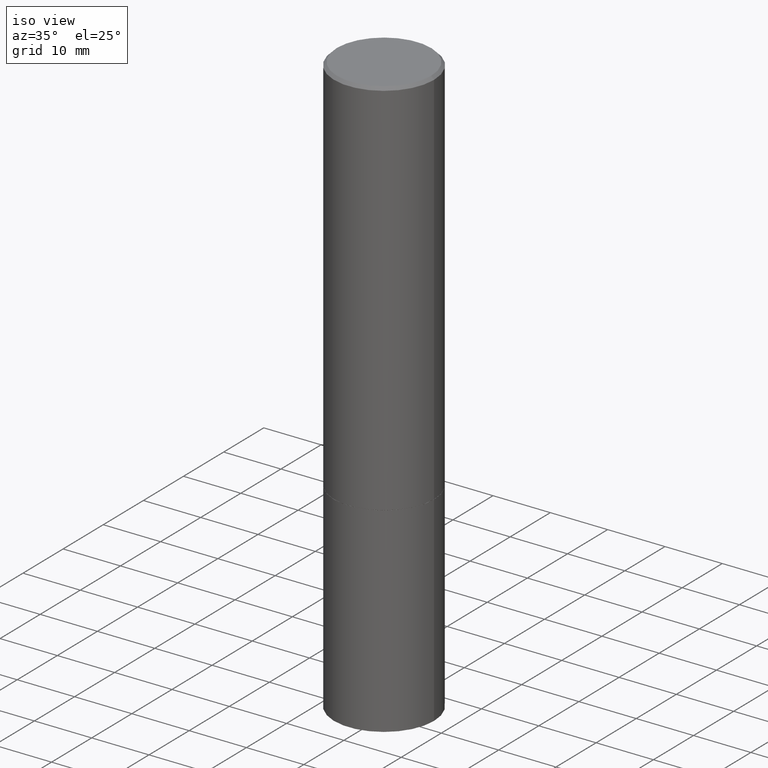
[diagram: clean part render]
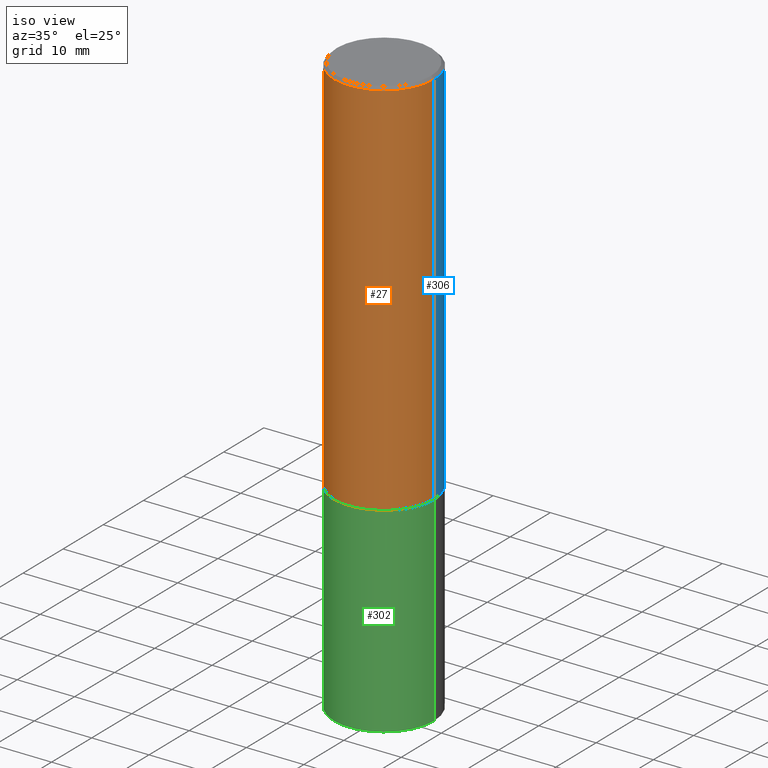
[diagram: same view with three faces highlighted in distinct colors, each labeled with its STEP entity id]
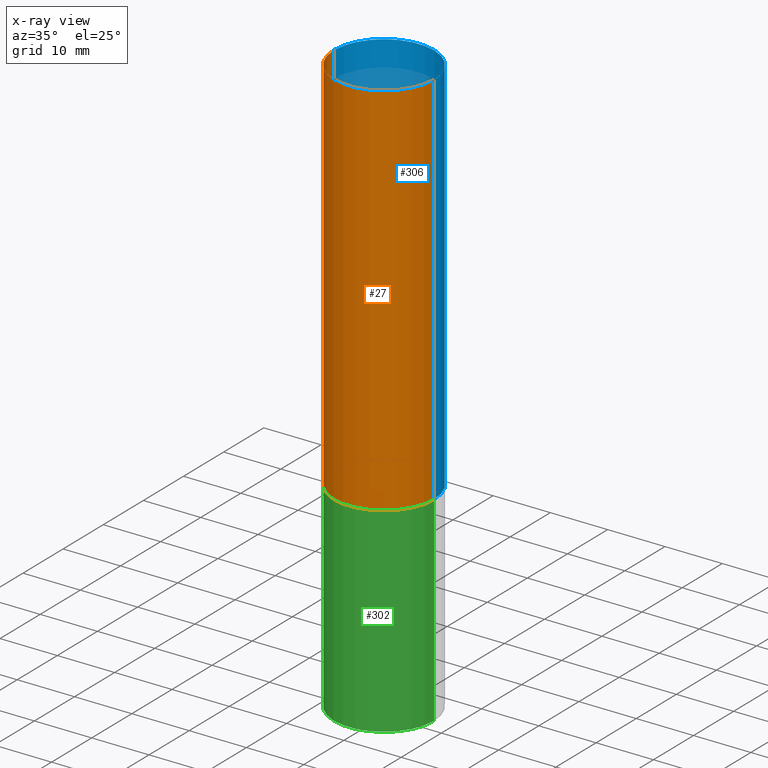
[diagram: x-ray of the same camera — body ghosted, the three highlighted faces saturated]
A machine part, iso view with three faces highlighted in distinct colors.
The next image is the same camera in x-ray (body ghosted, the three faces saturated) — at least one of them is partly hidden behind the body in this view.
Their STEP definitions:

[orange] entity #27 — the highlighted cylindrical surface (partial cylindrical patch) has radius 8.7312 mm, axis along (-0, 0, 1).
#27 = ADVANCED_FACE ( 'NONE', ( #379 ), #106, .T. ) ;
#35 = EDGE_CURVE ( 'NONE', #278, #168, #131, .T. ) ;
#38 = VERTEX_POINT ( 'NONE', #311 ) ;
#74 = DIRECTION ( 'NONE',  ( 1.000000000000000000, -6.982962677686266711E-15, 0.000000000000000000 ) ) ;
#76 = DIRECTION ( 'NONE',  ( 1.000000000000000000, -6.982962677686267499E-15, 4.876176775795935232E-29 ) ) ;
#84 = DIRECTION ( 'NONE',  ( 1.000000000000000000, -6.982962677686263555E-15, 0.000000000000000000 ) ) ;
#99 = VERTEX_POINT ( 'NONE', #259 ) ;
#104 = LINE ( 'NONE', #254, #298 ) ;
#106 = CYLINDRICAL_SURFACE ( 'NONE', #153, 0.3437499999999998335 ) ;
#108 = ORIENTED_EDGE ( 'NONE', *, *, #299, .T. ) ;
#115 = CARTESIAN_POINT ( 'NONE',  ( 0.3437499999999996669, -2.428125813510824906E-15, -0.02000000000000009409 ) ) ;
#130 = DIRECTION ( 'NONE',  ( -2.445468806185136597E-29, 3.491481338843145583E-15, 1.000000000000000000 ) ) ;
#131 = CIRCLE ( 'NONE', #357, 0.3437499999999996669 ) ;
#136 = ORIENTED_EDGE ( 'NONE', *, *, #35, .F. ) ;
#150 = CARTESIAN_POINT ( 'NONE',  ( -0.3437499999999996669, 2.330563793677788517E-15, -0.02000000000000009409 ) ) ;
#153 = AXIS2_PLACEMENT_3D ( 'NONE', #343, #130, #76 ) ;
#154 = EDGE_CURVE ( 'NONE', #99, #168, #231, .T. ) ;
#158 = CIRCLE ( 'NONE', #177, 0.3437500000000000000 ) ;
#168 = VERTEX_POINT ( 'NONE', #115 ) ;
#175 = EDGE_CURVE ( 'NONE', #38, #278, #104, .T. ) ;
#177 = AXIS2_PLACEMENT_3D ( 'NONE', #358, #206, #84 ) ;
#206 = DIRECTION ( 'NONE',  ( -2.445468806185136597E-29, 3.491481338843145583E-15, 1.000000000000000000 ) ) ;
#213 = VECTOR ( 'NONE', #371, 39.37007874015748143 ) ;
#226 = EDGE_LOOP ( 'NONE', ( #310, #108, #339, #136 ) ) ;
#231 = LINE ( 'NONE', #351, #213 ) ;
#254 = CARTESIAN_POINT ( 'NONE',  ( -0.3437499999999998335, 2.442490654175343206E-15, -1.690883937275123074E-29 ) ) ;
#259 = CARTESIAN_POINT ( 'NONE',  ( 0.3437500000000000000, -1.156204045357906700E-14, -2.624000000000000110 ) ) ;
#278 = VERTEX_POINT ( 'NONE', #150 ) ;
#288 = CARTESIAN_POINT ( 'NONE',  ( 4.890937612370296805E-31, -6.982962677686323656E-17, -0.02000000000000009409 ) ) ;
#298 = VECTOR ( 'NONE', #320, 39.37007874015748143 ) ;
#299 = EDGE_CURVE ( 'NONE', #38, #99, #158, .T. ) ;
#309 = DIRECTION ( 'NONE',  ( -2.445468806185136597E-29, 3.491481338843145583E-15, 1.000000000000000000 ) ) ;
#310 = ORIENTED_EDGE ( 'NONE', *, *, #175, .F. ) ;
#311 = CARTESIAN_POINT ( 'NONE',  ( -0.3437500000000000000, -2.173247675775292485E-15, -2.624000000000000110 ) ) ;
#320 = DIRECTION ( 'NONE',  ( -2.445468806185136877E-29, 3.491481338843145188E-15, 1.000000000000000000 ) ) ;
#339 = ORIENTED_EDGE ( 'NONE', *, *, #154, .T. ) ;
#343 = CARTESIAN_POINT ( 'NONE',  ( 0.000000000000000000, 0.000000000000000000, 0.000000000000000000 ) ) ;
#351 = CARTESIAN_POINT ( 'NONE',  ( 0.3437499999999998335, -2.400393420454653393E-15, 1.676185766679852018E-29 ) ) ;
#357 = AXIS2_PLACEMENT_3D ( 'NONE', #288, #309, #74 ) ;
#358 = CARTESIAN_POINT ( 'NONE',  ( 6.416910147429799085E-29, -9.161647033124413605E-15, -2.624000000000000110 ) ) ;
#371 = DIRECTION ( 'NONE',  ( -2.445468806185136877E-29, 3.491481338843145188E-15, 1.000000000000000000 ) ) ;
#379 = FACE_OUTER_BOUND ( 'NONE', #226, .T. ) ;

[blue] entity #306 — the highlighted cylindrical surface (partial cylindrical patch) has radius 8.7312 mm, axis along (-0, 0, 1).
#7 = DIRECTION ( 'NONE',  ( 1.000000000000000000, -6.982962677686263555E-15, 0.000000000000000000 ) ) ;
#8 = AXIS2_PLACEMENT_3D ( 'NONE', #204, #325, #292 ) ;
#9 = ORIENTED_EDGE ( 'NONE', *, *, #248, .F. ) ;
#11 = DIRECTION ( 'NONE',  ( -2.445468806185136597E-29, 3.491481338843145583E-15, 1.000000000000000000 ) ) ;
#28 = AXIS2_PLACEMENT_3D ( 'NONE', #149, #90, #148 ) ;
#38 = VERTEX_POINT ( 'NONE', #311 ) ;
#87 = CIRCLE ( 'NONE', #28, 0.3437499999999996669 ) ;
#89 = EDGE_CURVE ( 'NONE', #99, #38, #335, .T. ) ;
#90 = DIRECTION ( 'NONE',  ( -2.445468806185136597E-29, 3.491481338843145583E-15, 1.000000000000000000 ) ) ;
#99 = VERTEX_POINT ( 'NONE', #259 ) ;
#104 = LINE ( 'NONE', #254, #298 ) ;
#115 = CARTESIAN_POINT ( 'NONE',  ( 0.3437499999999996669, -2.428125813510824906E-15, -0.02000000000000009409 ) ) ;
#132 = AXIS2_PLACEMENT_3D ( 'NONE', #163, #11, #7 ) ;
#148 = DIRECTION ( 'NONE',  ( 1.000000000000000000, -6.982962677686266711E-15, 0.000000000000000000 ) ) ;
#149 = CARTESIAN_POINT ( 'NONE',  ( 4.890937612370296805E-31, -6.982962677686323656E-17, -0.02000000000000009409 ) ) ;
#150 = CARTESIAN_POINT ( 'NONE',  ( -0.3437499999999996669, 2.330563793677788517E-15, -0.02000000000000009409 ) ) ;
#154 = EDGE_CURVE ( 'NONE', #99, #168, #231, .T. ) ;
#163 = CARTESIAN_POINT ( 'NONE',  ( 6.416910147429799085E-29, -9.161647033124413605E-15, -2.624000000000000110 ) ) ;
#168 = VERTEX_POINT ( 'NONE', #115 ) ;
#175 = EDGE_CURVE ( 'NONE', #38, #278, #104, .T. ) ;
#204 = CARTESIAN_POINT ( 'NONE',  ( 0.000000000000000000, 0.000000000000000000, 0.000000000000000000 ) ) ;
#213 = VECTOR ( 'NONE', #371, 39.37007874015748143 ) ;
#223 = EDGE_LOOP ( 'NONE', ( #372, #342, #9, #246 ) ) ;
#231 = LINE ( 'NONE', #351, #213 ) ;
#233 = CYLINDRICAL_SURFACE ( 'NONE', #8, 0.3437499999999998335 ) ;
#246 = ORIENTED_EDGE ( 'NONE', *, *, #154, .F. ) ;
#248 = EDGE_CURVE ( 'NONE', #168, #278, #87, .T. ) ;
#254 = CARTESIAN_POINT ( 'NONE',  ( -0.3437499999999998335, 2.442490654175343206E-15, -1.690883937275123074E-29 ) ) ;
#259 = CARTESIAN_POINT ( 'NONE',  ( 0.3437500000000000000, -1.156204045357906700E-14, -2.624000000000000110 ) ) ;
#278 = VERTEX_POINT ( 'NONE', #150 ) ;
#292 = DIRECTION ( 'NONE',  ( 1.000000000000000000, -6.982962677686267499E-15, 4.876176775795935232E-29 ) ) ;
#298 = VECTOR ( 'NONE', #320, 39.37007874015748143 ) ;
#306 = ADVANCED_FACE ( 'NONE', ( #385 ), #233, .T. ) ;
#311 = CARTESIAN_POINT ( 'NONE',  ( -0.3437500000000000000, -2.173247675775292485E-15, -2.624000000000000110 ) ) ;
#320 = DIRECTION ( 'NONE',  ( -2.445468806185136877E-29, 3.491481338843145188E-15, 1.000000000000000000 ) ) ;
#325 = DIRECTION ( 'NONE',  ( -2.445468806185136597E-29, 3.491481338843145583E-15, 1.000000000000000000 ) ) ;
#335 = CIRCLE ( 'NONE', #132, 0.3437500000000000000 ) ;
#342 = ORIENTED_EDGE ( 'NONE', *, *, #175, .T. ) ;
#351 = CARTESIAN_POINT ( 'NONE',  ( 0.3437499999999998335, -2.400393420454653393E-15, 1.676185766679852018E-29 ) ) ;
#371 = DIRECTION ( 'NONE',  ( -2.445468806185136877E-29, 3.491481338843145188E-15, 1.000000000000000000 ) ) ;
#372 = ORIENTED_EDGE ( 'NONE', *, *, #89, .T. ) ;
#385 = FACE_OUTER_BOUND ( 'NONE', #223, .T. ) ;

[green] entity #302 — the highlighted cylindrical surface (partial cylindrical patch) has radius 8.7312 mm, axis along (-0, 0, 1).
#12 = DIRECTION ( 'NONE',  ( 1.000000000000000000, -6.982962677686269077E-15, 0.000000000000000000 ) ) ;
#25 = DIRECTION ( 'NONE',  ( -2.445468806185136597E-29, 3.491481338843145583E-15, 1.000000000000000000 ) ) ;
#34 = AXIS2_PLACEMENT_3D ( 'NONE', #40, #282, #12 ) ;
#40 = CARTESIAN_POINT ( 'NONE',  ( 9.781875224740546387E-29, -1.396592535537258233E-14, -4.000000000000000000 ) ) ;
#59 = DIRECTION ( 'NONE',  ( 1.000000000000000000, -6.982962677686265922E-15, 4.876176775795935793E-29 ) ) ;
#60 = CARTESIAN_POINT ( 'NONE',  ( 0.3437500000000006661, -1.632422154210654946E-14, -4.000000000000000000 ) ) ;
#62 = CARTESIAN_POINT ( 'NONE',  ( -0.3437500000000006661, -1.156553193491792420E-14, -4.000000000000000000 ) ) ;
#81 = CARTESIAN_POINT ( 'NONE',  ( -0.3437500000000000000, 2.442490654175344389E-15, -1.690883937275123635E-29 ) ) ;
#88 = EDGE_CURVE ( 'NONE', #256, #283, #140, .T. ) ;
#92 = CARTESIAN_POINT ( 'NONE',  ( -0.3437500000000000000, -9.123041280742575082E-15, -2.625000000000000000 ) ) ;
#105 = ORIENTED_EDGE ( 'NONE', *, *, #139, .T. ) ;
#111 = AXIS2_PLACEMENT_3D ( 'NONE', #388, #241, #365 ) ;
#114 = DIRECTION ( 'NONE',  ( -2.445468806185136877E-29, 3.491481338843145188E-15, 1.000000000000000000 ) ) ;
#125 = CIRCLE ( 'NONE', #111, 0.3437500000000000000 ) ;
#139 = EDGE_CURVE ( 'NONE', #368, #377, #172, .T. ) ;
#140 = LINE ( 'NONE', #81, #188 ) ;
#172 = LINE ( 'NONE', #262, #276 ) ;
#188 = VECTOR ( 'NONE', #198, 39.37007874015748143 ) ;
#198 = DIRECTION ( 'NONE',  ( -2.445468806185136877E-29, 3.491481338843145188E-15, 1.000000000000000000 ) ) ;
#199 = AXIS2_PLACEMENT_3D ( 'NONE', #386, #25, #59 ) ;
#200 = ORIENTED_EDGE ( 'NONE', *, *, #236, .T. ) ;
#215 = EDGE_CURVE ( 'NONE', #283, #377, #125, .T. ) ;
#220 = ORIENTED_EDGE ( 'NONE', *, *, #88, .F. ) ;
#236 = EDGE_CURVE ( 'NONE', #256, #368, #323, .T. ) ;
#241 = DIRECTION ( 'NONE',  ( -2.445468806185136597E-29, 3.491481338843145583E-15, 1.000000000000000000 ) ) ;
#256 = VERTEX_POINT ( 'NONE', #62 ) ;
#262 = CARTESIAN_POINT ( 'NONE',  ( 0.3437500000000000000, -2.400393420454653787E-15, 1.676185766679852859E-29 ) ) ;
#266 = CYLINDRICAL_SURFACE ( 'NONE', #199, 0.3437500000000000000 ) ;
#276 = VECTOR ( 'NONE', #114, 39.37007874015748143 ) ;
#282 = DIRECTION ( 'NONE',  ( -2.445468806185136597E-29, 3.491481338843145583E-15, 1.000000000000000000 ) ) ;
#283 = VERTEX_POINT ( 'NONE', #92 ) ;
#290 = ORIENTED_EDGE ( 'NONE', *, *, #215, .F. ) ;
#295 = FACE_OUTER_BOUND ( 'NONE', #308, .T. ) ;
#297 = CARTESIAN_POINT ( 'NONE',  ( 0.3437500000000000000, -1.156553193491791158E-14, -2.625000000000000000 ) ) ;
#302 = ADVANCED_FACE ( 'NONE', ( #295 ), #266, .T. ) ;
#308 = EDGE_LOOP ( 'NONE', ( #220, #200, #105, #290 ) ) ;
#323 = CIRCLE ( 'NONE', #34, 0.3437500000000000000 ) ;
#365 = DIRECTION ( 'NONE',  ( 1.000000000000000000, -6.982962677686269077E-15, 0.000000000000000000 ) ) ;
#368 = VERTEX_POINT ( 'NONE', #60 ) ;
#377 = VERTEX_POINT ( 'NONE', #297 ) ;
#386 = CARTESIAN_POINT ( 'NONE',  ( 0.000000000000000000, 0.000000000000000000, 0.000000000000000000 ) ) ;
#388 = CARTESIAN_POINT ( 'NONE',  ( 6.419355616235983567E-29, -9.165138514463256612E-15, -2.625000000000000000 ) ) ;